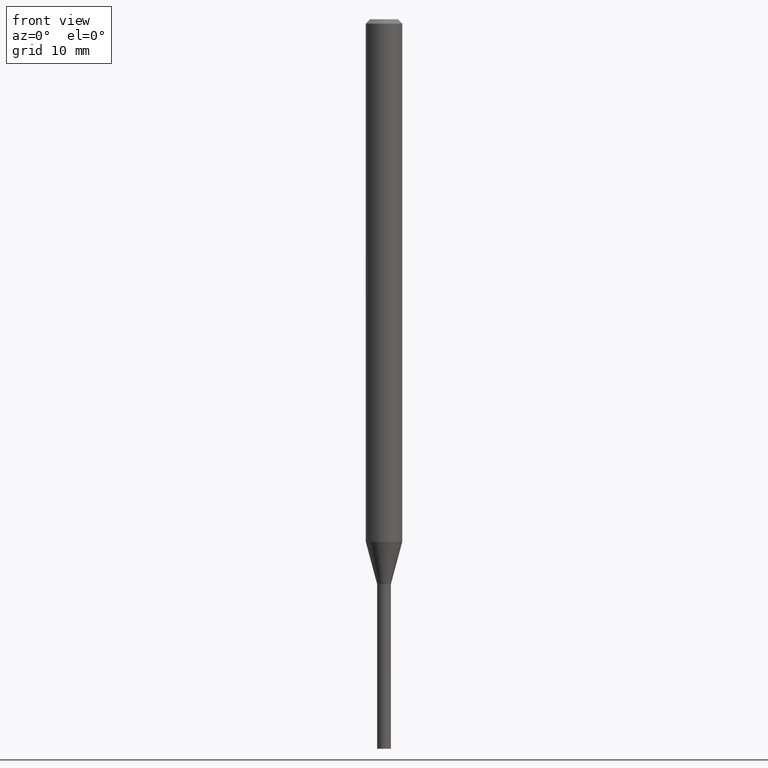
[diagram: clean part render]
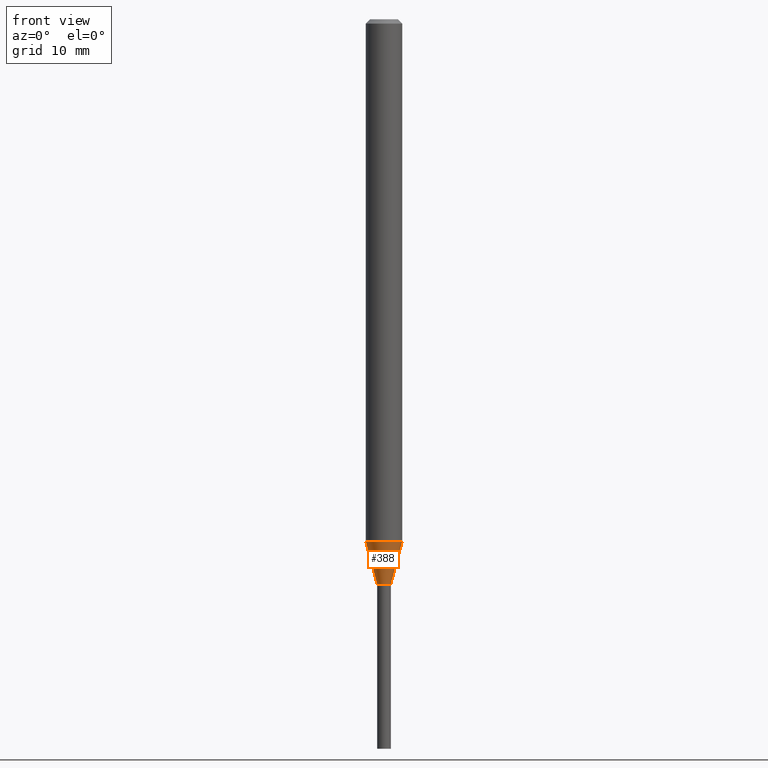
[diagram: same view with one face highlighted and labeled with its STEP entity id]
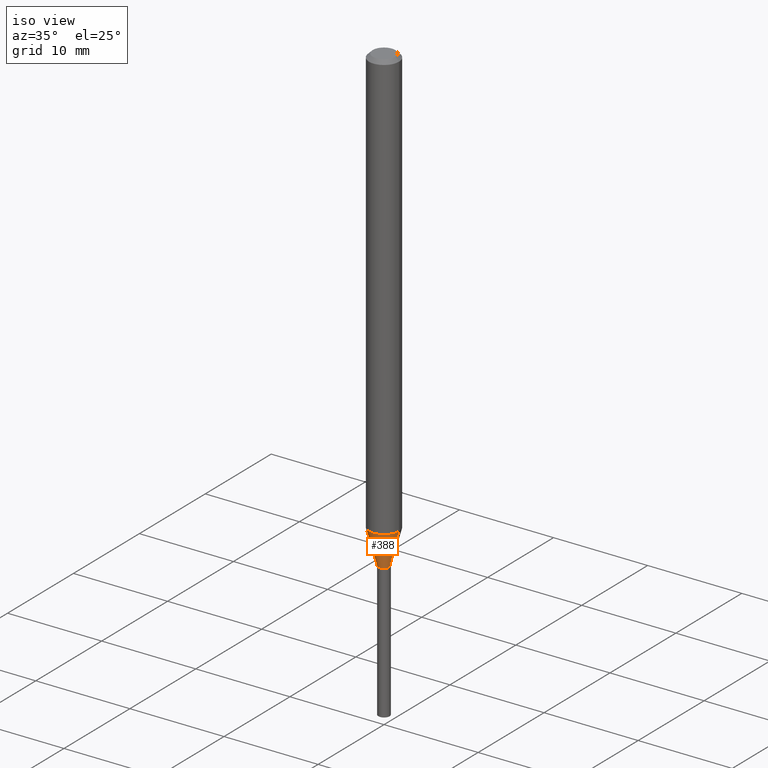
[diagram: same view with one face highlighted and labeled with its STEP entity id]
A machine part, front view. The second image highlights one B-rep face of the part: STEP entity #388.
A second angle (iso view) of the same face is appended — the face is thin or edge-on in the first view.
In plain terms, the highlighted conical surface has half-angle 15 deg.
Its self-contained STEP definition (entity closure, byte-faithful):
#33 = EDGE_CURVE ( 'NONE', #167, #106, #301, .T. ) ;
#59 = EDGE_CURVE ( 'NONE', #106, #137, #199, .T. ) ;
#60 = DIRECTION ( 'NONE',  ( 1.000000000000000000, -6.982962677686253300E-15, 0.000000000000000000 ) ) ;
#77 = EDGE_CURVE ( 'NONE', #347, #137, #314, .T. ) ;
#78 = LINE ( 'NONE', #393, #436 ) ;
#106 = VERTEX_POINT ( 'NONE', #294 ) ;
#114 = EDGE_CURVE ( 'NONE', #167, #347, #78, .T. ) ;
#117 = AXIS2_PLACEMENT_3D ( 'NONE', #353, #264, #131 ) ;
#121 = DIRECTION ( 'NONE',  ( 1.000000000000000000, -6.982962677686253300E-15, 0.000000000000000000 ) ) ;
#127 = DIRECTION ( 'NONE',  ( -2.445468806185136597E-29, 3.491481338843145583E-15, 1.000000000000000000 ) ) ;
#131 = DIRECTION ( 'NONE',  ( 1.000000000000000000, -6.982962677686262766E-15, 0.000000000000000000 ) ) ;
#135 = CARTESIAN_POINT ( 'NONE',  ( 4.734427608774424873E-29, -6.759507872000331609E-15, -1.936000000000000387 ) ) ;
#137 = VERTEX_POINT ( 'NONE', #185 ) ;
#158 = ORIENTED_EDGE ( 'NONE', *, *, #33, .T. ) ;
#159 = ORIENTED_EDGE ( 'NONE', *, *, #59, .T. ) ;
#161 = CONICAL_SURFACE ( 'NONE', #215, 0.02349999999999992026, 0.2617993877991504625 ) ;
#167 = VERTEX_POINT ( 'NONE', #435 ) ;
#185 = CARTESIAN_POINT ( 'NONE',  ( 0.06250000000000000000, -6.687757995096315969E-15, -1.790450018504814444 ) ) ;
#189 = CARTESIAN_POINT ( 'NONE',  ( 4.734427608774424873E-29, -6.759507872000331609E-15, -1.936000000000000387 ) ) ;
#192 = CARTESIAN_POINT ( 'NONE',  ( -0.06250000000000000000, -5.807233617890861683E-15, -1.790450018504814444 ) ) ;
#199 = LINE ( 'NONE', #441, #461 ) ;
#210 = EDGE_LOOP ( 'NONE', ( #438, #158, #159, #366 ) ) ;
#215 = AXIS2_PLACEMENT_3D ( 'NONE', #135, #447, #121 ) ;
#230 = DIRECTION ( 'NONE',  ( 0.2588190451025217387, 1.565188264969619207E-15, 0.9659258262890679791 ) ) ;
#264 = DIRECTION ( 'NONE',  ( -2.445468806185136597E-29, 3.491481338843145583E-15, 1.000000000000000000 ) ) ;
#294 = CARTESIAN_POINT ( 'NONE',  ( 0.02349999999999992026, -6.923607494925957677E-15, -1.936000000000000387 ) ) ;
#295 = FACE_OUTER_BOUND ( 'NONE', #210, .T. ) ;
#301 = CIRCLE ( 'NONE', #397, 0.02349999999999992026 ) ;
#314 = CIRCLE ( 'NONE', #117, 0.06250000000000000000 ) ;
#347 = VERTEX_POINT ( 'NONE', #192 ) ;
#353 = CARTESIAN_POINT ( 'NONE',  ( 4.378489669287124378E-29, -6.251322827740924299E-15, -1.790450018504814444 ) ) ;
#366 = ORIENTED_EDGE ( 'NONE', *, *, #77, .F. ) ;
#388 = ADVANCED_FACE ( 'NONE', ( #295 ), #161, .T. ) ;
#393 = CARTESIAN_POINT ( 'NONE',  ( -0.02349999999999992026, -6.592530329096708311E-15, -1.936000000000000387 ) ) ;
#397 = AXIS2_PLACEMENT_3D ( 'NONE', #189, #127, #60 ) ;
#435 = CARTESIAN_POINT ( 'NONE',  ( -0.02349999999999992026, -6.199881973493785786E-15, -1.936000000000000387 ) ) ;
#436 = VECTOR ( 'NONE', #437, 39.37007874015748854 ) ;
#437 = DIRECTION ( 'NONE',  ( -0.2588190451025217387, 5.211531920934551042E-15, 0.9659258262890679791 ) ) ;
#438 = ORIENTED_EDGE ( 'NONE', *, *, #114, .F. ) ;
#441 = CARTESIAN_POINT ( 'NONE',  ( 0.02349999999999992026, -6.923607494925957677E-15, -1.936000000000000387 ) ) ;
#447 = DIRECTION ( 'NONE',  ( -2.445468806185136597E-29, 3.491481338843145583E-15, 1.000000000000000000 ) ) ;
#461 = VECTOR ( 'NONE', #230, 39.37007874015748854 ) ;